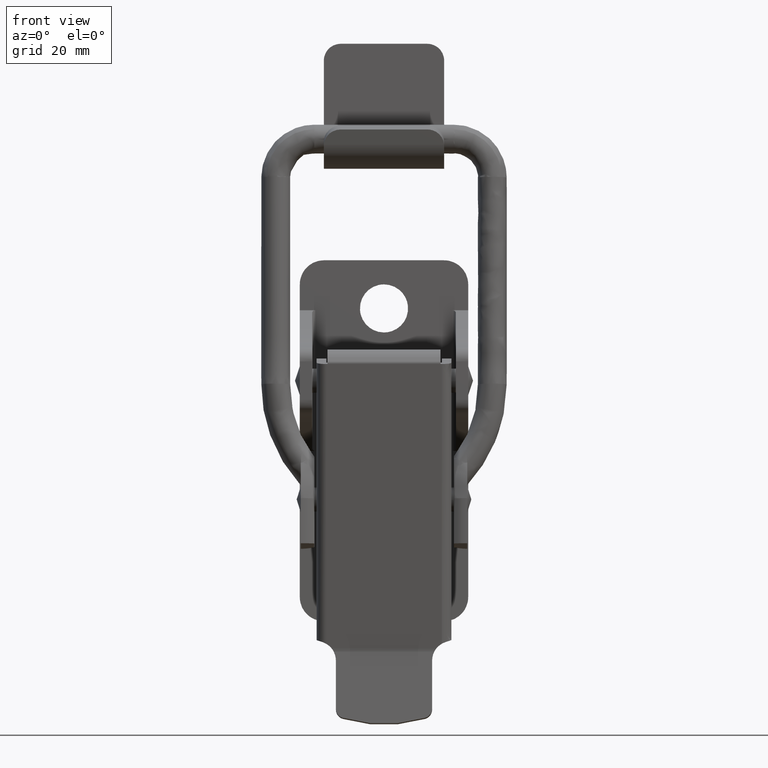
[diagram: clean part render]
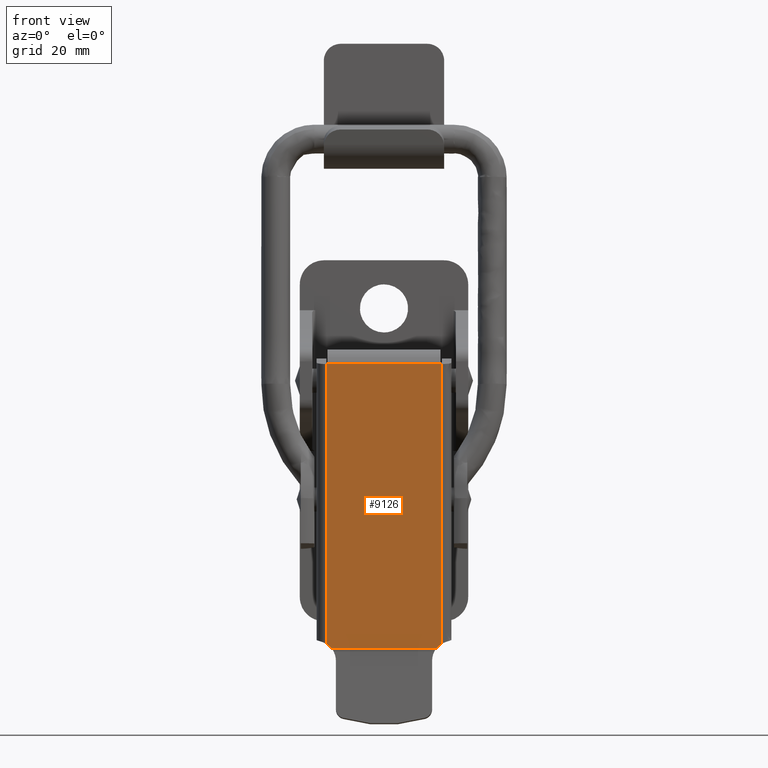
[diagram: same view with one face highlighted and labeled with its STEP entity id]
A machine part, front view. The second image highlights one B-rep face of the part: STEP entity #9126.
In plain terms, the highlighted face is a freeform B-spline surface patch.
Its self-contained STEP definition (entity closure, byte-faithful):
#6913=CARTESIAN_POINT('',(-15.300000000000001,10.940115060713440,-105.357875681299800));
#6914=VERTEX_POINT('',#6913);
#6924=CARTESIAN_POINT('',(-15.300000000000001,12.0,-104.470031847970200));
#6925=VERTEX_POINT('',#6924);
#6926=CARTESIAN_POINT('',(-15.300000000000001,12.000000000000030,-104.470031847970300));
#6927=CARTESIAN_POINT('',(-15.299999999999995,11.392163795435916,-104.820966244298500));
#6928=CARTESIAN_POINT('',(-15.300000000000001,10.940115060713451,-105.357875681299800));
#6936=(BOUNDED_CURVE()B_SPLINE_CURVE(2,(#6926,#6927,#6928),.UNSPECIFIED.,.F.,.U.)CURVE()GEOMETRIC_REPRESENTATION_ITEM()QUASI_UNIFORM_CURVE()RATIONAL_B_SPLINE_CURVE((1.0,0.984952229513348,1.0))REPRESENTATION_ITEM(''));
#6937=EDGE_CURVE('',#6925,#6914,#6936,.T.);
#7035=CARTESIAN_POINT('',(-15.300000000000001,-12.0,-104.470031847970200));
#7036=VERTEX_POINT('',#7035);
#7070=CARTESIAN_POINT('',(-15.300000000000001,-10.940115060713440,-105.357875681299800));
#7071=VERTEX_POINT('',#7070);
#7072=CARTESIAN_POINT('',(-15.300000000000001,-10.940115060713451,-105.357875681299800));
#7073=CARTESIAN_POINT('',(-15.300000000000002,-11.392163795435915,-104.820966244298490));
#7074=CARTESIAN_POINT('',(-15.300000000000001,-12.000000000000030,-104.470031847970300));
#7082=(BOUNDED_CURVE()B_SPLINE_CURVE(2,(#7072,#7073,#7074),.UNSPECIFIED.,.F.,.U.)CURVE()GEOMETRIC_REPRESENTATION_ITEM()QUASI_UNIFORM_CURVE()RATIONAL_B_SPLINE_CURVE((1.0,0.984952229513348,1.0))REPRESENTATION_ITEM(''));
#7083=EDGE_CURVE('',#7071,#7036,#7082,.T.);
#7270=CARTESIAN_POINT('',(-15.300000000000001,11.750000000000000,-45.697142857142801));
#7271=VERTEX_POINT('',#7270);
#7287=CARTESIAN_POINT('',(-15.300000000000001,-11.750000000000000,-45.697142857142801));
#7288=VERTEX_POINT('',#7287);
#7289=CARTESIAN_POINT('',(-15.300000000000001,-11.750000000000000,-45.697142857142801));
#7290=CARTESIAN_POINT('',(-15.300000000000001,11.750000000000000,-45.697142857142801));
#7291=QUASI_UNIFORM_CURVE('',1,(#7289,#7290),.UNSPECIFIED.,.F.,.U.);
#7292=EDGE_CURVE('',#7288,#7271,#7291,.T.);
#7777=CARTESIAN_POINT('',(-15.300000000000001,10.940115060713440,-105.357875681299800));
#7778=CARTESIAN_POINT('',(-15.300000000000001,-10.940115060713440,-105.357875681299800));
#7779=QUASI_UNIFORM_CURVE('',1,(#7777,#7778),.UNSPECIFIED.,.F.,.U.);
#7780=EDGE_CURVE('',#6914,#7071,#7779,.T.);
#7806=CARTESIAN_POINT('',(-15.300000000000001,-12.0,-45.700000000000003));
#7807=VERTEX_POINT('',#7806);
#7823=CARTESIAN_POINT('',(-15.300000000000001,-12.0,-104.470031847970200));
#7824=CARTESIAN_POINT('',(-15.300000000000001,-12.0,-45.700000000000003));
#7825=QUASI_UNIFORM_CURVE('',1,(#7823,#7824),.UNSPECIFIED.,.F.,.U.);
#7826=EDGE_CURVE('',#7036,#7807,#7825,.T.);
#8003=CARTESIAN_POINT('',(-15.300000000000001,12.0,-45.700000000000003));
#8004=VERTEX_POINT('',#8003);
#8024=CARTESIAN_POINT('',(-15.300000000000001,12.0,-45.700000000000003));
#8025=CARTESIAN_POINT('',(-15.300000000000001,12.0,-104.470031847970200));
#8026=QUASI_UNIFORM_CURVE('',1,(#8024,#8025),.UNSPECIFIED.,.F.,.U.);
#8027=EDGE_CURVE('',#8004,#6925,#8026,.T.);
#8321=CARTESIAN_POINT('',(-15.300000000000001,-11.750000000000000,-45.700000000000003));
#8322=VERTEX_POINT('',#8321);
#8323=CARTESIAN_POINT('',(-15.300000000000001,-11.750000000000000,-45.697142857142801));
#8324=CARTESIAN_POINT('',(-15.300000000000001,-11.750000000000000,-45.700000000000003));
#8325=QUASI_UNIFORM_CURVE('',1,(#8323,#8324),.UNSPECIFIED.,.F.,.U.);
#8326=EDGE_CURVE('',#7288,#8322,#8325,.T.);
#8412=CARTESIAN_POINT('',(-15.300000000000001,11.750000000000000,-45.700000000000003));
#8413=VERTEX_POINT('',#8412);
#8414=CARTESIAN_POINT('',(-15.300000000000001,11.750000000000000,-45.697142857142801));
#8415=CARTESIAN_POINT('',(-15.300000000000001,11.750000000000000,-45.700000000000003));
#8416=QUASI_UNIFORM_CURVE('',1,(#8414,#8415),.UNSPECIFIED.,.F.,.U.);
#8417=EDGE_CURVE('',#7271,#8413,#8416,.T.);
#9032=CARTESIAN_POINT('',(-15.300000000000001,-11.750000000000000,-45.700000000000003));
#9033=CARTESIAN_POINT('',(-15.300000000000001,-12.0,-45.700000000000003));
#9034=QUASI_UNIFORM_CURVE('',1,(#9032,#9033),.UNSPECIFIED.,.F.,.U.);
#9035=EDGE_CURVE('',#8322,#7807,#9034,.T.);
#9105=CARTESIAN_POINT('',(-15.300000000000001,-13.198799953483340,-108.337925249866500));
#9106=CARTESIAN_POINT('',(-15.300000000000001,-13.198799953483340,-42.717087954490957));
#9107=CARTESIAN_POINT('',(-15.300000000000001,13.198800597213509,-108.337925249866500));
#9108=CARTESIAN_POINT('',(-15.300000000000001,13.198800597213509,-42.717087954490957));
#9109=B_SPLINE_SURFACE_WITH_KNOTS('',1,1,((#9105,#9107),(#9106,#9108)),.UNSPECIFIED.,.F.,.F.,.U.,(2,2),(2,2),(0.0,65.620837295375495),(0.0,26.397600550696851),.UNSPECIFIED.);
#9110=ORIENTED_EDGE('',*,*,#8326,.F.);
#9111=ORIENTED_EDGE('',*,*,#7292,.T.);
#9112=ORIENTED_EDGE('',*,*,#8417,.T.);
#9113=CARTESIAN_POINT('',(-15.300000000000001,12.0,-45.700000000000003));
#9114=CARTESIAN_POINT('',(-15.300000000000001,11.750000000000000,-45.700000000000003));
#9115=QUASI_UNIFORM_CURVE('',1,(#9113,#9114),.UNSPECIFIED.,.F.,.U.);
#9116=EDGE_CURVE('',#8004,#8413,#9115,.T.);
#9117=ORIENTED_EDGE('',*,*,#9116,.F.);
#9118=ORIENTED_EDGE('',*,*,#8027,.T.);
#9119=ORIENTED_EDGE('',*,*,#6937,.T.);
#9120=ORIENTED_EDGE('',*,*,#7780,.T.);
#9121=ORIENTED_EDGE('',*,*,#7083,.T.);
#9122=ORIENTED_EDGE('',*,*,#7826,.T.);
#9123=ORIENTED_EDGE('',*,*,#9035,.F.);
#9124=EDGE_LOOP('',(#9110,#9111,#9112,#9117,#9118,#9119,#9120,#9121,#9122,#9123));
#9125=FACE_OUTER_BOUND('',#9124,.T.);
#9126=ADVANCED_FACE('',(#9125),#9109,.T.);